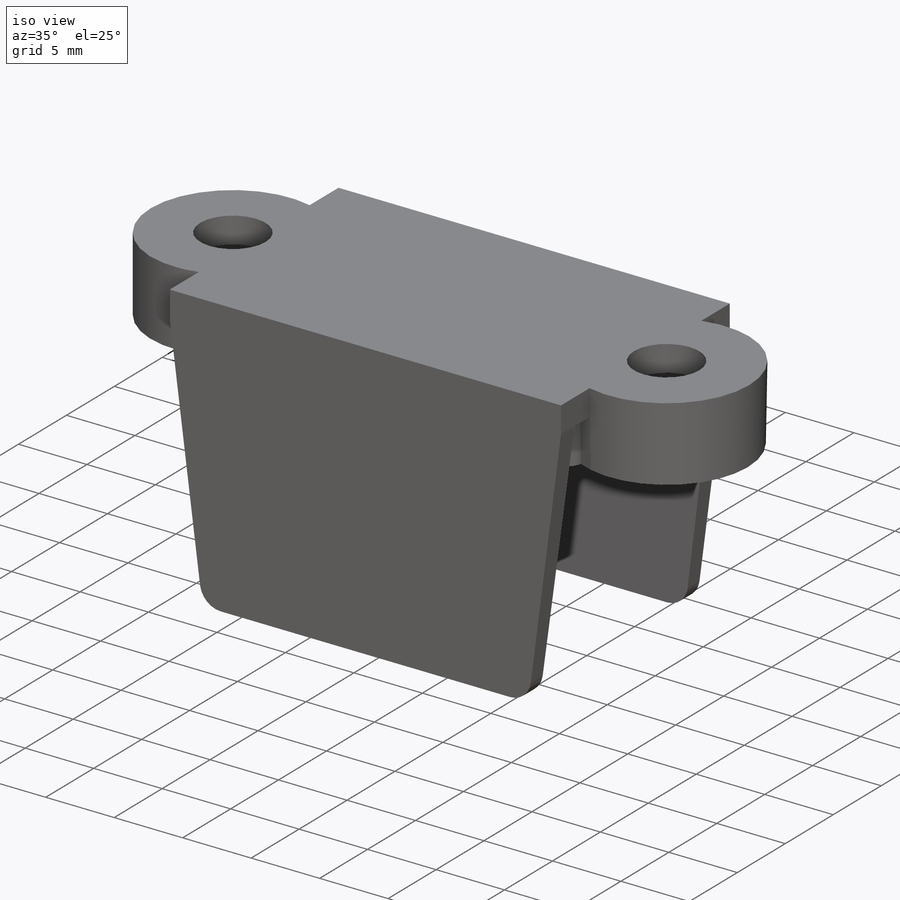
[diagram: iso view]
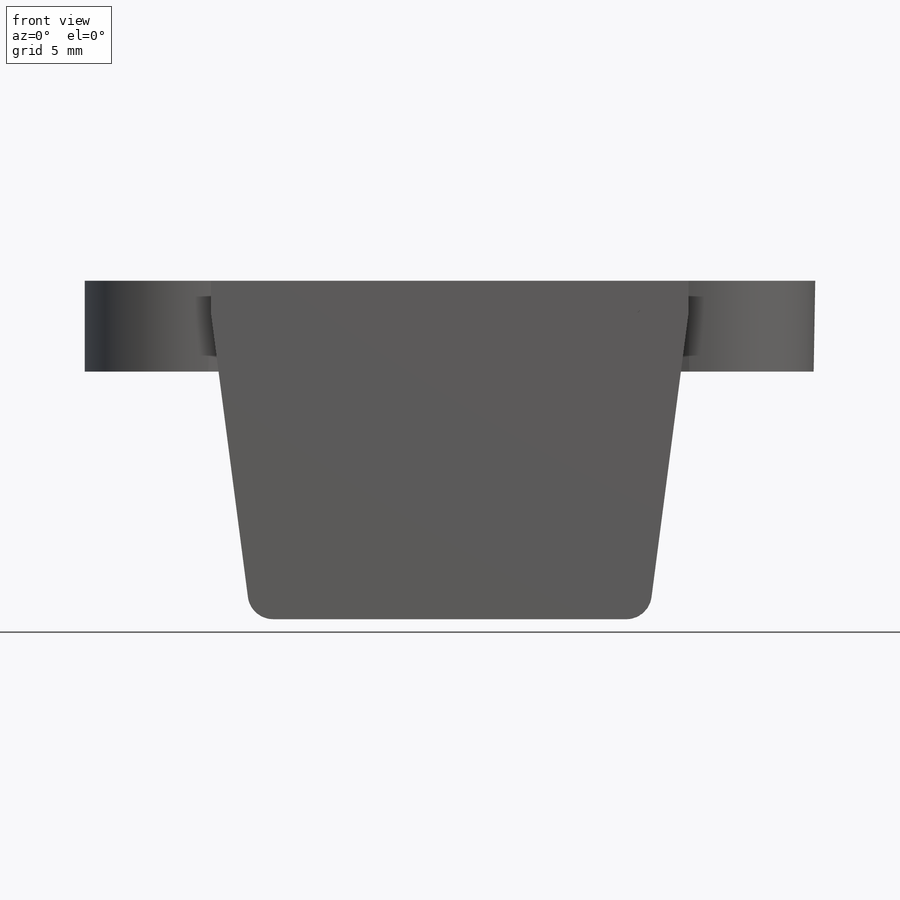
[diagram: front view]
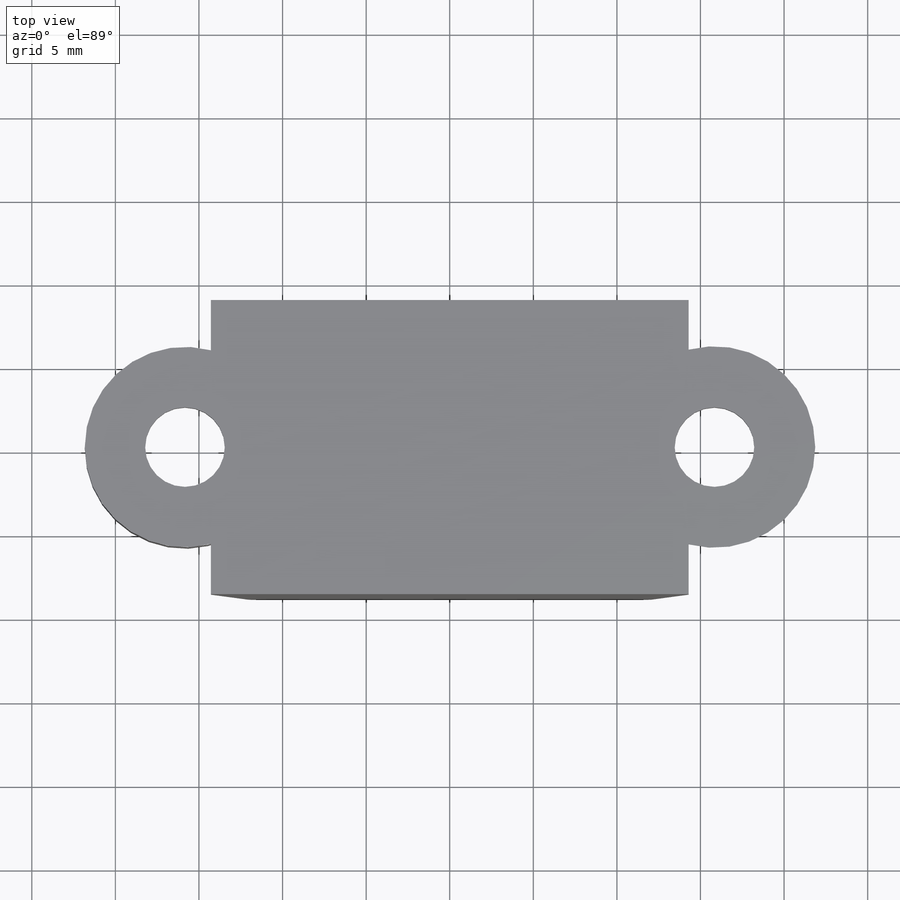
[diagram: top view]
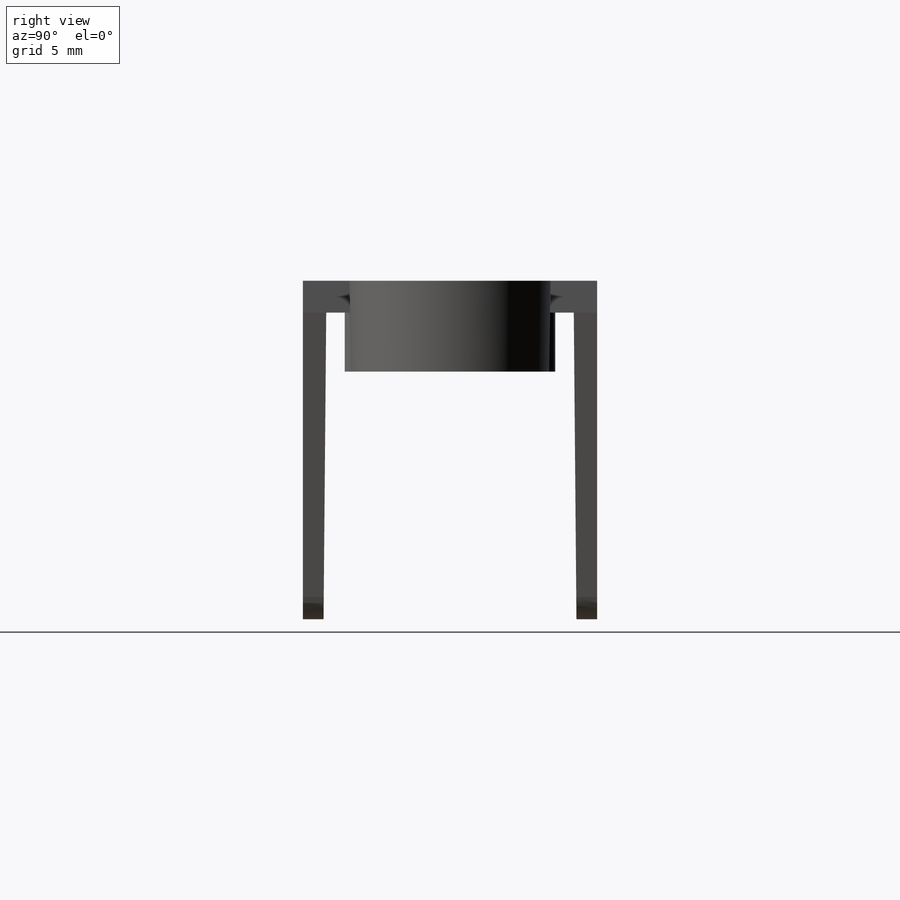
[diagram: right view]
SOLIDWORKS PART (.sldprt)
format: sldprt  version: not decoded by parser v0  size: 795,648 bytes
history: native  units: mm
features: sketch x7, extrude x5, mirror x5, cut_extrude x2, material x1, fillet x1, pattern_linear x1 (+12 scaffold rows collapsed)
feature tree (34):
  scaffold x12  (default folders/planes/origin — collapsed)
  material  "Material <not specified>"
  sketch  "Sketch1"  dims[c1.D3=11.9888mm c1.D4=11.9888mm c1.D5=4.7625mm c1.D1=17.6022mm c1.D2=28.575mm c2.D4=43.6626mm]
  extrude  "Boss-Extrude1"  Depth=1.905mm
  sketch  "Sketch3"  dims[D1=20.2438mm D5=1.397mm D6=2.54mm D7=5.0mm]
  sketch  "Sketch4"  dims[D1=23.7998mm D2=20.2438mm]
  cut_extrude  "Cut-Extrude2"  [1 undecoded]
  fillet  "Fillet1"  Radius=1.524mm
  mirror  "Mirror1"
  sketch  "Sketch5"  dims[c1.D1=~0.789953mm c1.D2=~0.621614mm c2.D1=~0.79375mm c2.D2=~0.67945mm]
  cut_extrude  "Cut-Extrude3"  Depth=1.524mm
  pattern_linear  "LPattern2"  Count1=5 Count2=9 Spacing1=1.4732mm Spacing2=1.5875mm
  mirror  "Mirror2"
  mirror  "Mirror3"
  sketch  "Sketch6"  dims[D1=9.652mm]
  extrude  "Boss-Extrude2"  Depth=3.5306mm
  sketch  "Sketch7"
  extrude  "Boss-Extrude3"  Depth=1.524mm
  extrude  "Draft2"  [1 undecoded]
  sketch  "Sketch8"  dims[D1=~2.14122mm]
  extrude  "Boss-Extrude4"  Depth=1.524mm
  mirror  "Mirror5"
  mirror  "Mirror4"
decode coverage: 13 of 21 modeling features carry decoded parameters
note: ~ marks probable driven/reference dimensions
note: 2 parameter values undecoded
note: suppression state not decoded; provenance and decode notes live in map.json
